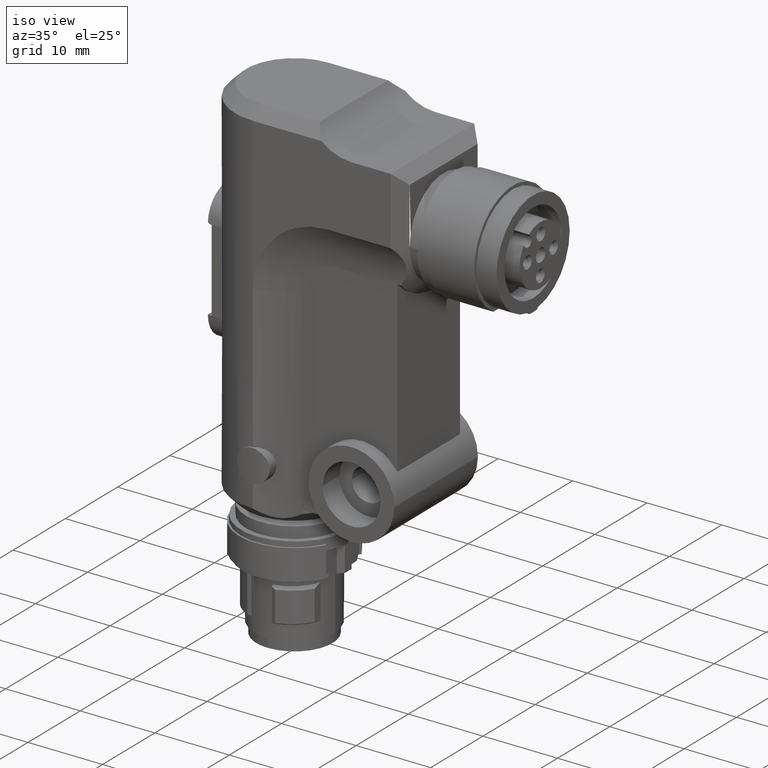
[diagram: clean part render]
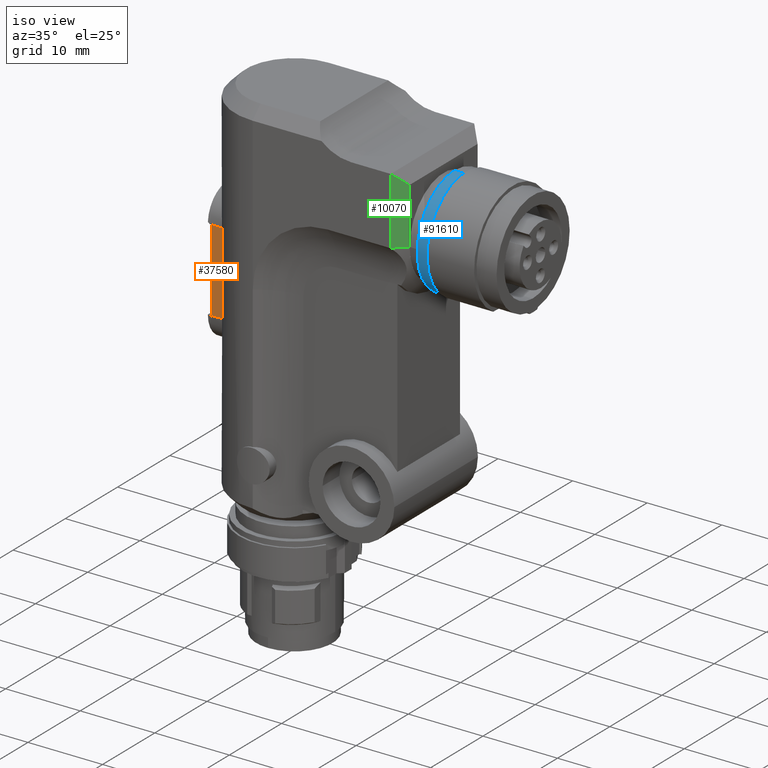
[diagram: same view with three faces highlighted in distinct colors, each labeled with its STEP entity id]
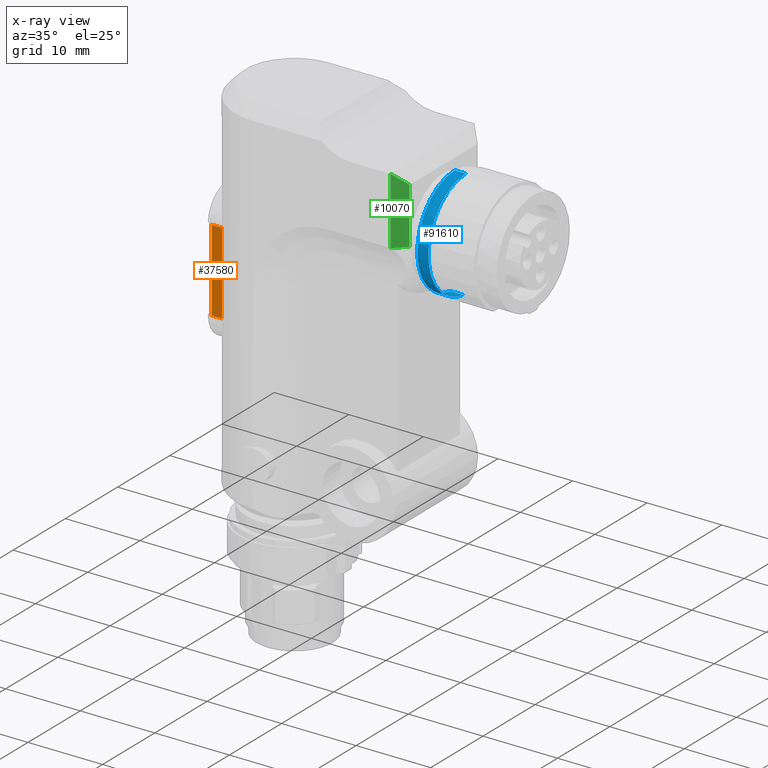
[diagram: x-ray of the same camera — body ghosted, the three highlighted faces saturated]
A machine part, iso view with three faces highlighted in distinct colors.
The next image is the same camera in x-ray (body ghosted, the three faces saturated) — at least one of them is partly hidden behind the body in this view.
Their STEP definitions:

[orange] entity #37580 — the highlighted planar face has unit normal (0, -1, 0).
#2350=CARTESIAN_POINT('',(3.75000000000001,-7.06664701255128,
21.000000000014));
#2360=VERTEX_POINT('',#2350);
#2390=CARTESIAN_POINT('',(3.74999999999999,-7.06664701255129,
2.00000000000001));
#2400=DIRECTION('',(2.52970265222012E-16,6.19598451167187E-32,1.));
#2410=VECTOR('',#2400,1.);
#2420=LINE('',#2390,#2410);
#2430=CARTESIAN_POINT('',(3.75,-7.06664701255129,32.));
#2440=VERTEX_POINT('',#2430);
#2450=EDGE_CURVE('',#2360,#2440,#2420,.T.);
#36140=CARTESIAN_POINT('',(3.75,-8.48999999999999,32.));
#36150=DIRECTION('',(0.,1.,0.));
#36160=VECTOR('',#36150,1.);
#36170=LINE('',#36140,#36160);
#36180=CARTESIAN_POINT('',(3.75,-8.48999999999999,32.));
#36190=VERTEX_POINT('',#36180);
#36200=EDGE_CURVE('',#36190,#2440,#36170,.T.);
#37140=CARTESIAN_POINT('',(3.75,-8.48999999999999,21.));
#37150=VERTEX_POINT('',#37140);
#37180=CARTESIAN_POINT('',(3.75000000000002,-8.48999999999999,21.));
#37190=DIRECTION('',(0.,1.,0.));
#37200=VECTOR('',#37190,1.);
#37210=LINE('',#37180,#37200);
#37220=EDGE_CURVE('',#37150,#2360,#37210,.T.);
#37420=CARTESIAN_POINT('',(3.75,-8.51500629999999,32.2750063));
#37430=DIRECTION('',(1.,-0.,0.));
#37440=DIRECTION('',(0.,0.,-1.));
#37450=AXIS2_PLACEMENT_3D('',#37420,#37430,#37440);
#37460=PLANE('',#37450);
#37470=ORIENTED_EDGE('',*,*,#37220,.T.);
#37480=CARTESIAN_POINT('',(3.75,-8.48999999999999,28.5));
#37490=DIRECTION('',(0.,0.,-1.));
#37500=VECTOR('',#37490,1.);
#37510=LINE('',#37480,#37500);
#37520=EDGE_CURVE('',#36190,#37150,#37510,.T.);
#37530=ORIENTED_EDGE('',*,*,#37520,.T.);
#37540=ORIENTED_EDGE('',*,*,#36200,.F.);
#37550=ORIENTED_EDGE('',*,*,#2450,.T.);
#37560=EDGE_LOOP('',(#37550,#37540,#37530,#37470));
#37570=FACE_OUTER_BOUND('',#37560,.T.);
#37580=ADVANCED_FACE('',(#37570),#37460,.T.);

[blue] entity #91610 — the highlighted cylindrical surface (partial cylindrical patch) has radius 7.2 mm, axis along (-1, 0, 0).
#79540=CARTESIAN_POINT('',(1.47668544059343E-11,21.5000000000026,
37.9999999999973));
#79550=DIRECTION('',(-1.47502265444277E-12,-1.,5.13196406003235E-13));
#79560=DIRECTION('',(-0.00593635351778227,-5.04431107404178E-13,
-0.999982379698219));
#79570=AXIS2_PLACEMENT_3D('',#79540,#79550,#79560);
#79580=CIRCLE('',#79570,7.20000000000001);
#79590=CARTESIAN_POINT('',(0.812466517004151,21.4999999999977,
30.8459872687554));
#79600=VERTEX_POINT('',#79590);
#79610=CARTESIAN_POINT('',(0.0425316981225707,21.5000000000062,
45.199874377697));
#79620=VERTEX_POINT('',#79610);
#79630=EDGE_CURVE('',#79600,#79620,#79580,.T.);
#80260=CARTESIAN_POINT('',(0.812466517006659,23.1999999999977,
30.8459872687545));
#80270=VERTEX_POINT('',#80260);
#80300=CARTESIAN_POINT('',(1.72741820847477E-11,23.2000000000026,
37.9999999999964));
#80310=DIRECTION('',(-1.47502265444277E-12,-1.,5.13196406003235E-13));
#80320=DIRECTION('',(-0.00593635351778227,-5.04431107404178E-13,
-0.999982379698219));
#80330=AXIS2_PLACEMENT_3D('',#80300,#80310,#80320);
#80340=CIRCLE('',#80330,7.20000000000001);
#80350=CARTESIAN_POINT('',(3.22597499746753,23.1999999999946,
31.5631463185907));
#80360=VERTEX_POINT('',#80350);
#80370=EDGE_CURVE('',#80270,#80360,#80340,.T.);
#90680=CARTESIAN_POINT('',(0.0425316981247814,23.0000000000062,
45.1998743776962));
#90690=VERTEX_POINT('',#90680);
#90720=CARTESIAN_POINT('',(0.0425316981255186,23.5000000000062,
45.1998743776959));
#90730=DIRECTION('',(1.47502265444277E-12,1.,-5.13196406003235E-13));
#90740=VECTOR('',#90730,1.);
#90750=LINE('',#90720,#90740);
#90760=EDGE_CURVE('',#79620,#90690,#90750,.T.);
#91300=CARTESIAN_POINT('',(1.77164949377584E-11,23.5000000000026,
37.9999999999963));
#91310=DIRECTION('',(-1.47502265444277E-12,-1.,5.13196406003235E-13));
#91320=DIRECTION('',(-0.00593635351778232,-5.04431107404178E-13,
-0.999982379698219));
#91330=AXIS2_PLACEMENT_3D('',#91300,#91310,#91320);
#91340=CYLINDRICAL_SURFACE('',#91330,7.20000000000001);
#91350=ORIENTED_EDGE('',*,*,#80370,.T.);
#91360=CARTESIAN_POINT('',(0.812466517003693,23.4999999999977,
30.845987268754));
#91370=DIRECTION('',(-1.47502265444277E-12,-1.,5.13196406003235E-13));
#91380=VECTOR('',#91370,1.);
#91390=LINE('',#91360,#91380);
#91400=EDGE_CURVE('',#80270,#79600,#91390,.T.);
#91410=ORIENTED_EDGE('',*,*,#91400,.F.);
#91420=ORIENTED_EDGE('',*,*,#79630,.F.);
#91430=ORIENTED_EDGE('',*,*,#90760,.F.);
#91440=CARTESIAN_POINT('',(1.69793068494073E-11,23.0000000000026,
37.9999999999965));
#91450=DIRECTION('',(-1.47502265444277E-12,-1.,5.13196406003235E-13));
#91460=DIRECTION('',(-0.00593635351778227,-5.04431107404178E-13,
-0.999982379698219));
#91470=AXIS2_PLACEMENT_3D('',#91440,#91450,#91460);
#91480=CIRCLE('',#91470,7.20000000000001);
#91490=CARTESIAN_POINT('',(3.22597499746723,22.9999999999945,
31.5631463185908));
#91500=VERTEX_POINT('',#91490);
#91510=EDGE_CURVE('',#91500,#90690,#91480,.T.);
#91520=ORIENTED_EDGE('',*,*,#91510,.T.);
#91530=CARTESIAN_POINT('',(3.22597499746797,23.4999999999945,
31.5631463185906));
#91540=DIRECTION('',(-1.47502265444277E-12,-1.,5.13196406003235E-13));
#91550=VECTOR('',#91540,1.);
#91560=LINE('',#91530,#91550);
#91570=EDGE_CURVE('',#80360,#91500,#91560,.T.);
#91580=ORIENTED_EDGE('',*,*,#91570,.T.);
#91590=EDGE_LOOP('',(#91580,#91520,#91430,#91420,#91410,#91350));
#91600=FACE_OUTER_BOUND('',#91590,.T.);
#91610=ADVANCED_FACE('',(#91600),#91340,.T.);

[green] entity #10070 — the highlighted planar face has unit normal (0.7071, -0.7071, 0).
#9580=CARTESIAN_POINT('',(7.25000000000001,19.25,42.5));
#9590=DIRECTION('',(0.707106781186564,0.707106781186531,0.));
#9600=DIRECTION('',(0.707106781186531,-0.707106781186564,0.));
#9610=AXIS2_PLACEMENT_3D('',#9580,#9590,#9600);
#9620=PLANE('',#9610);
#9630=CARTESIAN_POINT('',(7.99999999999999,18.5,37.9999984046267));
#9640=CARTESIAN_POINT('',(7.50000000000003,19.,37.9999989364178));
#9650=CARTESIAN_POINT('',(7.00000000000009,19.5,37.999999468209));
#9660=CARTESIAN_POINT('',(6.50000000000013,20.,38.0000000000001));
#9670=B_SPLINE_CURVE_WITH_KNOTS('',3,(#9630,#9640,#9650,#9660),
.UNSPECIFIED.,.F.,.F.,(4,4),(0.,2.12132034356013),.UNSPECIFIED.);
#9680=CARTESIAN_POINT('',(7.99999859336715,18.5000014066329,
37.9999984050278));
#9690=VERTEX_POINT('',#9680);
#9700=CARTESIAN_POINT('',(6.50000000000016,20.,38.0000000000001));
#9710=VERTEX_POINT('',#9700);
#9720=EDGE_CURVE('',#9690,#9710,#9670,.T.);
#9730=ORIENTED_EDGE('',*,*,#9720,.T.);
#9740=CARTESIAN_POINT('',(14.0000000000001,12.4999999999996,
32.7084973778708));
#9750=DIRECTION('',(0.707106781186564,0.707106781186531,0.));
#9760=DIRECTION('',(0.707106781186531,-0.707106781186564,0.));
#9770=AXIS2_PLACEMENT_3D('',#9740,#9750,#9760);
#9780=ELLIPSE('',#9770,11.3137084989852,8.00000000000009);
#9790=CARTESIAN_POINT('',(8.,18.5,38.));
#9800=VERTEX_POINT('',#9790);
#9810=EDGE_CURVE('',#9690,#9800,#9780,.T.);
#9820=ORIENTED_EDGE('',*,*,#9810,.F.);
#9830=CARTESIAN_POINT('',(8.,18.5,0.));
#9840=DIRECTION('',(0.,0.,-1.));
#9850=VECTOR('',#9840,1.);
#9860=LINE('',#9830,#9850);
#9870=CARTESIAN_POINT('',(8.,18.5,47.));
#9880=VERTEX_POINT('',#9870);
#9890=EDGE_CURVE('',#9880,#9800,#9860,.T.);
#9900=ORIENTED_EDGE('',*,*,#9890,.T.);
#9910=CARTESIAN_POINT('',(-38.9999999999979,65.5,0.));
#9920=DIRECTION('',(0.577350269189608,-0.577350269189635,
0.577350269189635));
#9930=VECTOR('',#9920,1.);
#9940=LINE('',#9910,#9930);
#9950=CARTESIAN_POINT('',(6.50000000000004,20.,45.5));
#9960=VERTEX_POINT('',#9950);
#9970=EDGE_CURVE('',#9960,#9880,#9940,.T.);
#9980=ORIENTED_EDGE('',*,*,#9970,.T.);
#9990=CARTESIAN_POINT('',(6.50000000000003,20.,0.));
#10000=DIRECTION('',(0.,0.,-1.));
#10010=VECTOR('',#10000,1.);
#10020=LINE('',#9990,#10010);
#10030=EDGE_CURVE('',#9960,#9710,#10020,.T.);
#10040=ORIENTED_EDGE('',*,*,#10030,.F.);
#10050=EDGE_LOOP('',(#10040,#9980,#9900,#9820,#9730));
#10060=FACE_OUTER_BOUND('',#10050,.T.);
#10070=ADVANCED_FACE('',(#10060),#9620,.T.);